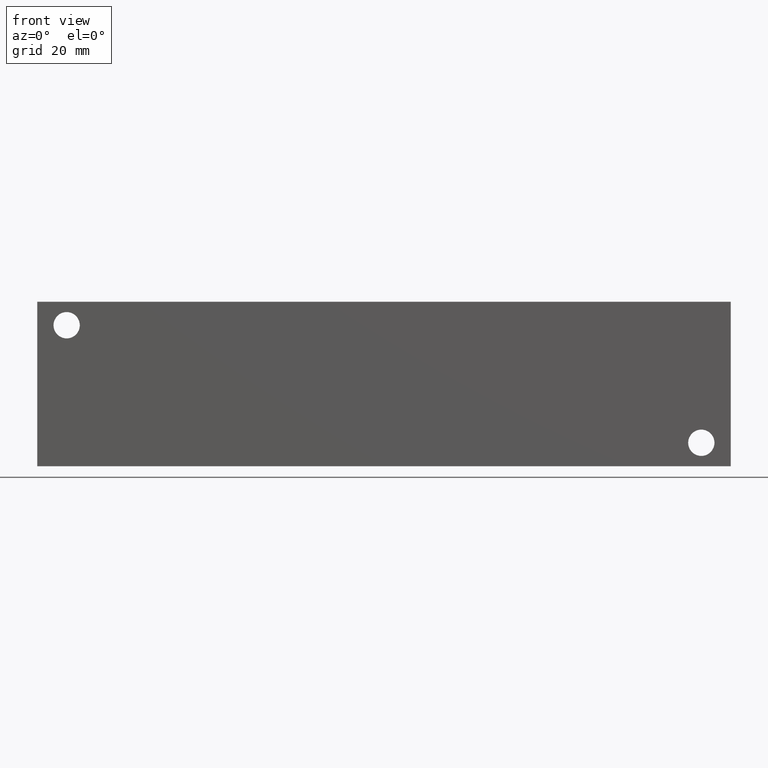
[diagram: clean part render]
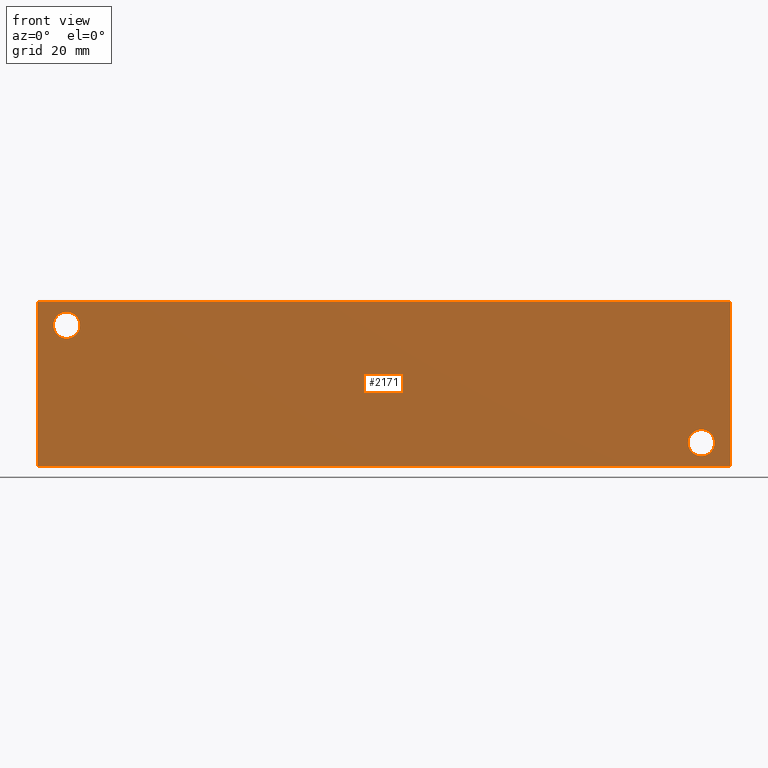
[diagram: same view with one face highlighted and labeled with its STEP entity id]
A machine part, front view. The second image highlights one B-rep face of the part: STEP entity #2171.
In plain terms, the highlighted planar face has unit normal (0, -1, 0).
Its self-contained STEP definition (entity closure, byte-faithful):
#849=CARTESIAN_POINT('',(182.956200000000000,0.0,6.350000000000000));
#850=VERTEX_POINT('',#849);
#851=CARTESIAN_POINT('',(179.387499999999990,0.0,6.350000000000000));
#852=DIRECTION('',(0.0,1.0,0.0));
#853=DIRECTION('',(1.0,0.0,0.0));
#854=AXIS2_PLACEMENT_3D('',#851,#852,#853);
#855=CIRCLE('',#854,3.568700000000007);
#856=EDGE_CURVE('',#850,#850,#855,.T.);
#1014=CARTESIAN_POINT('',(11.506200000000000,0.0,38.100000000000009));
#1015=VERTEX_POINT('',#1014);
#1016=CARTESIAN_POINT('',(7.937500000000001,0.0,38.100000000000009));
#1017=DIRECTION('',(0.0,1.0,0.0));
#1018=DIRECTION('',(1.0,0.0,0.0));
#1019=AXIS2_PLACEMENT_3D('',#1016,#1017,#1018);
#1020=CIRCLE('',#1019,3.568699999999999);
#1021=EDGE_CURVE('',#1015,#1015,#1020,.T.);
#2035=CARTESIAN_POINT('',(0.0,0.0,44.450000000000003));
#2036=VERTEX_POINT('',#2035);
#2053=CARTESIAN_POINT('',(0.0,0.0,0.0));
#2054=VERTEX_POINT('',#2053);
#2061=CARTESIAN_POINT('',(0.0,0.0,0.0));
#2062=DIRECTION('',(0.0,0.0,1.0));
#2063=VECTOR('',#2062,44.450000000000003);
#2064=LINE('',#2061,#2063);
#2065=EDGE_CURVE('',#2054,#2036,#2064,.T.);
#2115=CARTESIAN_POINT('',(187.324999999999990,0.0,44.450000000000003));
#2116=VERTEX_POINT('',#2115);
#2123=CARTESIAN_POINT('',(187.324999999999990,0.0,0.0));
#2124=VERTEX_POINT('',#2123);
#2125=CARTESIAN_POINT('',(187.324999999999990,0.0,0.0));
#2126=DIRECTION('',(0.0,0.0,1.0));
#2127=VECTOR('',#2126,44.450000000000003);
#2128=LINE('',#2125,#2127);
#2129=EDGE_CURVE('',#2124,#2116,#2128,.T.);
#2144=CARTESIAN_POINT('',(187.324999999999990,0.0,0.0));
#2145=DIRECTION('',(0.0,-1.0,0.0));
#2146=DIRECTION('',(0.0,0.0,-1.0));
#2147=AXIS2_PLACEMENT_3D('',#2144,#2145,#2146);
#2148=PLANE('',#2147);
#2149=CARTESIAN_POINT('',(187.324999999999990,0.0,44.450000000000003));
#2150=DIRECTION('',(-1.0,0.0,0.0));
#2151=VECTOR('',#2150,187.324999999999990);
#2152=LINE('',#2149,#2151);
#2153=EDGE_CURVE('',#2116,#2036,#2152,.T.);
#2154=ORIENTED_EDGE('',*,*,#2153,.T.);
#2155=ORIENTED_EDGE('',*,*,#2065,.F.);
#2156=CARTESIAN_POINT('',(0.0,0.0,0.0));
#2157=DIRECTION('',(1.0,0.0,0.0));
#2158=VECTOR('',#2157,187.324999999999990);
#2159=LINE('',#2156,#2158);
#2160=EDGE_CURVE('',#2054,#2124,#2159,.T.);
#2161=ORIENTED_EDGE('',*,*,#2160,.T.);
#2162=ORIENTED_EDGE('',*,*,#2129,.T.);
#2163=EDGE_LOOP('',(#2154,#2155,#2161,#2162));
#2164=FACE_OUTER_BOUND('',#2163,.T.);
#2165=ORIENTED_EDGE('',*,*,#856,.T.);
#2166=EDGE_LOOP('',(#2165));
#2167=FACE_BOUND('',#2166,.T.);
#2168=ORIENTED_EDGE('',*,*,#1021,.T.);
#2169=EDGE_LOOP('',(#2168));
#2170=FACE_BOUND('',#2169,.T.);
#2171=ADVANCED_FACE('',(#2164,#2167,#2170),#2148,.T.);